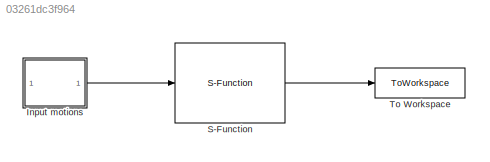
MODEL slx_03261dc3f964
KIND model
CONFIG AbsTol = auto
CONFIG EnableMultiTasking = off
CONFIG FixedStep = dt
CONFIG MaxStep = auto
CONFIG MinStep = auto
CONFIG RelTol = 1e-3
CONFIG SampleTimeConstraint = Unconstrained
CONFIG SolverName = FixedStepDiscrete
CONFIG StartTime = 0.0
CONFIG StopTime = TMax
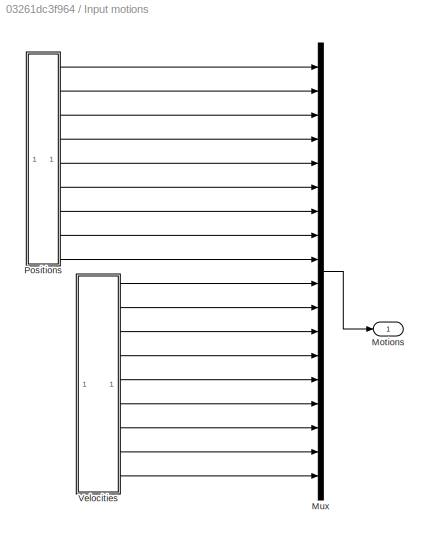
BLOCK [SubSystem] Input motions
BLOCK [Outport] Input motions/Motions
  VectorParamsAs1DForOutWhenUnconnected = off
BLOCK [Mux] Input motions/Mux
  DisplayOption = bar
  Inputs = 18
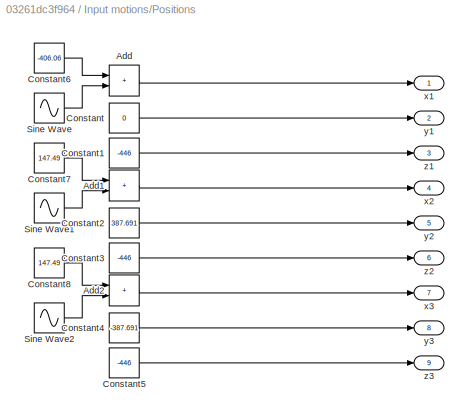
BLOCK [SubSystem] Input motions/Positions
BLOCK [Sum] Input motions/Positions/Add
  IconShape = rectangular
BLOCK [Sum] Input motions/Positions/Add1
  IconShape = rectangular
BLOCK [Sum] Input motions/Positions/Add2
  IconShape = rectangular
BLOCK [Constant] Input motions/Positions/Constant
  Value = 0
BLOCK [Constant] Input motions/Positions/Constant1
  Value = -446
BLOCK [Constant] Input motions/Positions/Constant2
  Value = 387.691
BLOCK [Constant] Input motions/Positions/Constant3
  Value = -446
BLOCK [Constant] Input motions/Positions/Constant4
  Value = -387.691
BLOCK [Constant] Input motions/Positions/Constant5
  Value = -446
BLOCK [Constant] Input motions/Positions/Constant6
  Value = -406.06
BLOCK [Constant] Input motions/Positions/Constant7
  Value = 147.49
BLOCK [Constant] Input motions/Positions/Constant8
  Value = 147.49
BLOCK [Sin] Input motions/Positions/Sine Wave
  Amplitude = 5
  Frequency = 0.314159265358979323846
  SampleTime = 0
BLOCK [Sin] Input motions/Positions/Sine Wave1
  Amplitude = 5
  Frequency = 0.314159265358979323846
  SampleTime = 0
BLOCK [Sin] Input motions/Positions/Sine Wave2
  Amplitude = 5
  Frequency = 0.314159265358979323846
  SampleTime = 0
BLOCK [Outport] Input motions/Positions/x1
BLOCK [Outport] Input motions/Positions/x2
  Port = 4
BLOCK [Outport] Input motions/Positions/x3
  Port = 7
BLOCK [Outport] Input motions/Positions/y1
  Port = 2
BLOCK [Outport] Input motions/Positions/y2
  Port = 5
BLOCK [Outport] Input motions/Positions/y3
  Port = 8
BLOCK [Outport] Input motions/Positions/z1
  Port = 3
BLOCK [Outport] Input motions/Positions/z2
  Port = 6
BLOCK [Outport] Input motions/Positions/z3
  Port = 9
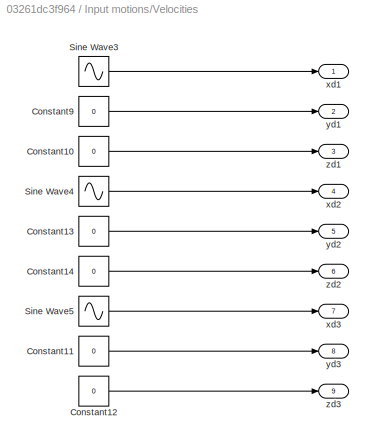
BLOCK [SubSystem] Input motions/Velocities
BLOCK [Constant] Input motions/Velocities/Constant10
  Value = 0
BLOCK [Constant] Input motions/Velocities/Constant11
  Value = 0
BLOCK [Constant] Input motions/Velocities/Constant12
  Value = 0
BLOCK [Constant] Input motions/Velocities/Constant13
  Value = 0
BLOCK [Constant] Input motions/Velocities/Constant14
  Value = 0
BLOCK [Constant] Input motions/Velocities/Constant9
  Value = 0
BLOCK [Sin] Input motions/Velocities/Sine Wave3
  Amplitude = 0.314159265358979323846
  Frequency = 0.314159265358979323846
  Phase = 3.14159265358979323846 / 2
  SampleTime = 0
BLOCK [Sin] Input motions/Velocities/Sine Wave4
  Amplitude = 0.314159265358979323846
  Frequency = 0.314159265358979323846
  Phase = 3.14159265358979323846 / 2
  SampleTime = 0
BLOCK [Sin] Input motions/Velocities/Sine Wave5
  Amplitude = 0.314159265358979323846
  Frequency = 0.314159265358979323846
  Phase = 3.14159265358979323846 / 2
  SampleTime = 0
BLOCK [Outport] Input motions/Velocities/xd1
BLOCK [Outport] Input motions/Velocities/xd2
  Port = 4
BLOCK [Outport] Input motions/Velocities/xd3
  Port = 7
BLOCK [Outport] Input motions/Velocities/yd1
  Port = 2
BLOCK [Outport] Input motions/Velocities/yd2
  Port = 5
BLOCK [Outport] Input motions/Velocities/yd3
  Port = 8
BLOCK [Outport] Input motions/Velocities/zd1
  Port = 3
BLOCK [Outport] Input motions/Velocities/zd2
  Port = 6
BLOCK [Outport] Input motions/Velocities/zd3
  Port = 9
BLOCK [S-Function] S-Function
  EnableBusSupport = off
  FunctionName = MD_SFunc_3DOF
  Parameters = MD_InputFileName, dt, TMax
  SFcnIsStateOwnerBlock = off
  SFunctionDeploymentMode = off
BLOCK [ToWorkspace] To Workspace
  FixptAsFi = on
  MaxDataPoints = inf
  SampleTime = -1
  SaveFormat = Timeseries
  VariableName = simout
LINE Input motions/Mux:1 -> Input motions/Motions:1
LINE Input motions/Positions/Add1:1 -> Input motions/Positions/x2:1
LINE Input motions/Positions/Add2:1 -> Input motions/Positions/x3:1
LINE Input motions/Positions/Add:1 -> Input motions/Positions/x1:1
LINE Input motions/Positions/Constant1:1 -> Input motions/Positions/z1:1
LINE Input motions/Positions/Constant2:1 -> Input motions/Positions/y2:1
LINE Input motions/Positions/Constant3:1 -> Input motions/Positions/z2:1
LINE Input motions/Positions/Constant4:1 -> Input motions/Positions/y3:1
LINE Input motions/Positions/Constant5:1 -> Input motions/Positions/z3:1
LINE Input motions/Positions/Constant6:1 -> Input motions/Positions/Add:1
LINE Input motions/Positions/Constant7:1 -> Input motions/Positions/Add1:1
LINE Input motions/Positions/Constant8:1 -> Input motions/Positions/Add2:1
LINE Input motions/Positions/Constant:1 -> Input motions/Positions/y1:1
LINE Input motions/Positions/Sine Wave1:1 -> Input motions/Positions/Add1:2
LINE Input motions/Positions/Sine Wave2:1 -> Input motions/Positions/Add2:2
LINE Input motions/Positions/Sine Wave:1 -> Input motions/Positions/Add:2
LINE Input motions/Positions:1 -> Input motions/Mux:1
LINE Input motions/Positions:2 -> Input motions/Mux:2
LINE Input motions/Positions:3 -> Input motions/Mux:3
LINE Input motions/Positions:4 -> Input motions/Mux:4
LINE Input motions/Positions:5 -> Input motions/Mux:5
LINE Input motions/Positions:6 -> Input motions/Mux:6
LINE Input motions/Positions:7 -> Input motions/Mux:7
LINE Input motions/Positions:8 -> Input motions/Mux:8
LINE Input motions/Positions:9 -> Input motions/Mux:9
LINE Input motions/Velocities/Constant10:1 -> Input motions/Velocities/zd1:1
LINE Input motions/Velocities/Constant11:1 -> Input motions/Velocities/yd3:1
LINE Input motions/Velocities/Constant12:1 -> Input motions/Velocities/zd3:1
LINE Input motions/Velocities/Constant13:1 -> Input motions/Velocities/yd2:1
LINE Input motions/Velocities/Constant14:1 -> Input motions/Velocities/zd2:1
LINE Input motions/Velocities/Constant9:1 -> Input motions/Velocities/yd1:1
LINE Input motions/Velocities/Sine Wave3:1 -> Input motions/Velocities/xd1:1
LINE Input motions/Velocities/Sine Wave4:1 -> Input motions/Velocities/xd2:1
LINE Input motions/Velocities/Sine Wave5:1 -> Input motions/Velocities/xd3:1
LINE Input motions/Velocities:1 -> Input motions/Mux:10
LINE Input motions/Velocities:2 -> Input motions/Mux:11
LINE Input motions/Velocities:3 -> Input motions/Mux:12
LINE Input motions/Velocities:4 -> Input motions/Mux:13
LINE Input motions/Velocities:5 -> Input motions/Mux:14
LINE Input motions/Velocities:6 -> Input motions/Mux:15
LINE Input motions/Velocities:7 -> Input motions/Mux:16
LINE Input motions/Velocities:8 -> Input motions/Mux:17
LINE Input motions/Velocities:9 -> Input motions/Mux:18
LINE Input motions:1 -> S-Function:1
LINE S-Function:1 -> To Workspace:1
